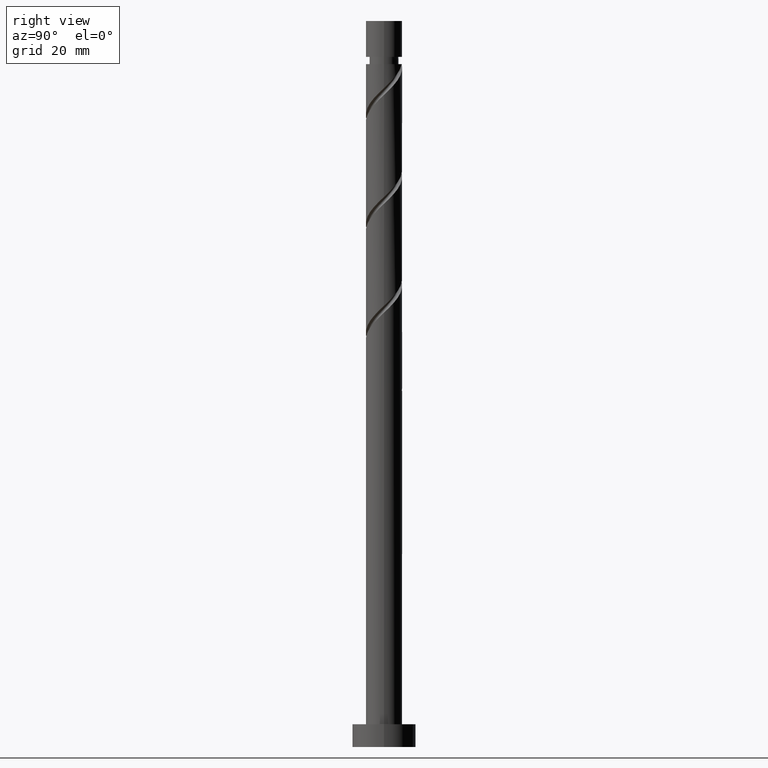
[diagram: clean part render]
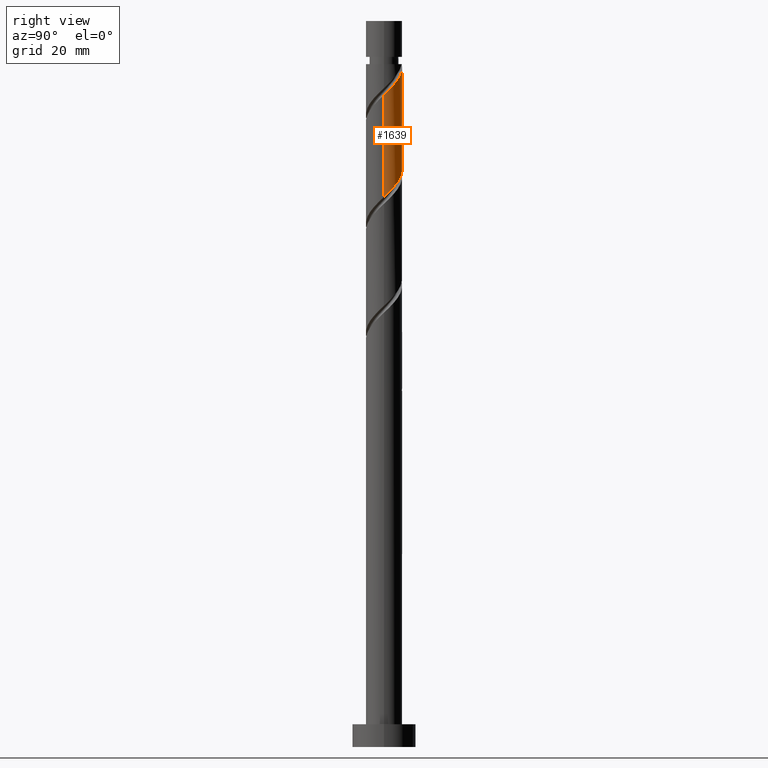
[diagram: same view with one face highlighted and labeled with its STEP entity id]
A machine part, right view. The second image highlights one B-rep face of the part: STEP entity #1639.
In plain terms, the highlighted cylindrical surface (edge-blend (fillet) strip) has radius 4 mm, axis along (-0, -0, -1).
Its self-contained STEP definition (entity closure, byte-faithful):
#1 = CARTESIAN_POINT ( 'NONE',  ( 3.960310248029106805, 0.8041752946599101115, 144.4903638429429122 ) ) ;
#15 = DIRECTION ( 'NONE',  ( -0.000000000000000000, -0.000000000000000000, -1.000000000000000000 ) ) ;
#20 = CARTESIAN_POINT ( 'NONE',  ( 4.000000000000005329, 0.1151021060952808067, 143.8357430158185082 ) ) ;
#23 = CARTESIAN_POINT ( 'NONE',  ( -3.766818871216632836, 1.345762085751508463, 131.9449092974883797 ) ) ;
#37 = CARTESIAN_POINT ( 'NONE',  ( 1.868138386609203838, 3.536956172823910727, 125.3994547520338472 ) ) ;
#98 = EDGE_CURVE ( 'NONE', #899, #764, #1036, .T. ) ;
#147 = EDGE_CURVE ( 'NONE', #526, #899, #344, .T. ) ;
#149 = CARTESIAN_POINT ( 'NONE',  ( 0.2323790372250010838, 4.034446077002895592, 127.0358183883974448 ) ) ;
#174 = CARTESIAN_POINT ( 'NONE',  ( -3.993381233129879693, 0.2300137536889541867, 133.0358183883974448 ) ) ;
#184 = VECTOR ( 'NONE', #846, 1000.000000000000000 ) ;
#277 = CYLINDRICAL_SURFACE ( 'NONE', #1334, 4.000000000000000000 ) ;
#283 = CARTESIAN_POINT ( 'NONE',  ( -3.573327494404164639, 1.887348876843108147, 131.3994547520338472 ) ) ;
#290 = CARTESIAN_POINT ( 'NONE',  ( -3.999999999999993339, 0.000000000000000000, 150.4903638429429122 ) ) ;
#307 = CARTESIAN_POINT ( 'NONE',  ( 3.201206812320808837, 2.466379960577145702, 123.7630911156702069 ) ) ;
#344 = LINE ( 'NONE', #1499, #184 ) ;
#363 = CARTESIAN_POINT ( 'NONE',  ( 3.235091246491828887, 2.352484777181775399, 146.1267274793065383 ) ) ;
#389 = CARTESIAN_POINT ( 'NONE',  ( 1.449682647155074333, 3.728058505782534393, 148.3085456611247537 ) ) ;
#393 = LINE ( 'NONE', #1545, #1434 ) ;
#401 = CARTESIAN_POINT ( 'NONE',  ( -2.896854998579482920, 2.817620677520439987, 130.3085456611247253 ) ) ;
#407 = CIRCLE ( 'NONE', #1281, 3.999999999999993339 ) ;
#411 = CARTESIAN_POINT ( 'NONE',  ( -2.441275768804708868, 3.168623142730448095, 129.7630911156701643 ) ) ;
#436 = CARTESIAN_POINT ( 'NONE',  ( -4.000000000000000000, -1.824732125826569623E-15, 133.2548728743137190 ) ) ;
#522 = CARTESIAN_POINT ( 'NONE',  ( 4.000000000000005329, 2.557616340297881178E-15, 143.7258548115720771 ) ) ;
#526 = VERTEX_POINT ( 'NONE', #290 ) ;
#550 = CARTESIAN_POINT ( 'NONE',  ( 2.376675911072815062, 3.268358422650716744, 124.8540002065793146 ) ) ;
#597 = EDGE_LOOP ( 'NONE', ( #701, #1159, #1463, #1351, #629 ) ) ;
#629 = ORIENTED_EDGE ( 'NONE', *, *, #721, .T. ) ;
#635 = DIRECTION ( 'NONE',  ( -0.000000000000000000, -0.000000000000000000, -1.000000000000000000 ) ) ;
#645 = CARTESIAN_POINT ( 'NONE',  ( 0.3406448590276063282, 3.985468740313755642, 149.3994547520338472 ) ) ;
#662 = CARTESIAN_POINT ( 'NONE',  ( 0.7959899496852975709, 3.919999999999999929, 126.4903638429428980 ) ) ;
#669 = CARTESIAN_POINT ( 'NONE',  ( 1.359600862145592615, 3.805553922997103378, 125.9449092974884223 ) ) ;
#690 = EDGE_CURVE ( 'NONE', #996, #764, #393, .T. ) ;
#694 = CARTESIAN_POINT ( 'NONE',  ( -3.960310248029102365, 0.8041752946599105556, 132.4903638429429122 ) ) ;
#701 = ORIENTED_EDGE ( 'NONE', *, *, #1110, .F. ) ;
#721 = EDGE_CURVE ( 'NONE', #526, #1454, #407, .T. ) ;
#735 = CARTESIAN_POINT ( 'NONE',  ( 4.000000000000001776, 0.4581157095404880808, 121.6922368319878984 ) ) ;
#764 = VERTEX_POINT ( 'NONE', #1418 ) ;
#788 = CARTESIAN_POINT ( 'NONE',  ( 3.993381233129885466, 0.2300137536889530487, 143.9449092974883797 ) ) ;
#797 = CARTESIAN_POINT ( 'NONE',  ( -0.9136687552802111867, 3.936491403624602814, 128.1267274793065667 ) ) ;
#798 = DIRECTION ( 'NONE',  ( -0.000000000000000000, -0.000000000000000000, -1.000000000000000000 ) ) ;
#803 = CARTESIAN_POINT ( 'NONE',  ( 0.000000000000000000, 0.000000000000000000, 160.0000000000000000 ) ) ;
#846 = DIRECTION ( 'NONE',  ( -0.000000000000000000, -0.000000000000000000, -1.000000000000000000 ) ) ;
#879 = CARTESIAN_POINT ( 'NONE',  ( 1.985696539029936369, 3.519625607940460643, 147.7630911156701927 ) ) ;
#887 = CARTESIAN_POINT ( 'NONE',  ( 4.000000000000005329, 2.557616340297881178E-15, 143.7258548115720771 ) ) ;
#899 = VERTEX_POINT ( 'NONE', #1114 ) ;
#938 = CARTESIAN_POINT ( 'NONE',  ( -1.449682647155072557, 3.728058505782528620, 128.6721820247610708 ) ) ;
#996 = VERTEX_POINT ( 'NONE', #887 ) ;
#1013 = CARTESIAN_POINT ( 'NONE',  ( 3.573327494404170412, 1.887348876843108370, 145.5812729338519489 ) ) ;
#1029 = CARTESIAN_POINT ( 'NONE',  ( 0.000000000000000000, 0.000000000000000000, 150.4903638429429122 ) ) ;
#1033 = CARTESIAN_POINT ( 'NONE',  ( -0.2323790372249945890, 4.034446077002900921, 149.9449092974883797 ) ) ;
#1036 =( BOUNDED_CURVE ( )  B_SPLINE_CURVE ( 2, ( #436, #1058, #174, #694, #23, #283, #1559, #401, #411, #1323, #938, #797, #1317, #149, #662, #669, #37, #550, #1573, #307, #1606, #1125, #1135, #735, #1360 ),
 .UNSPECIFIED., .F., .T. ) 
 B_SPLINE_CURVE_WITH_KNOTS ( ( 3, 2, 2, 2, 2, 2, 2, 2, 2, 2, 2, 2, 3 ),
 ( 0.4295252162417512176, 0.4318181818181818232, 0.4431818181818181768, 0.4545454545454545303, 0.4659090909090908839, 0.4772727272727272929, 0.4886363636363636465, 0.5000000000000000000, 0.5113636363636363535, 0.5227272727272727071, 0.5340909090909090606, 0.5454545454545454142, 0.5545252162417513286 ),
 .UNSPECIFIED. ) 
 CURVE ( )  GEOMETRIC_REPRESENTATION_ITEM ( )  RATIONAL_B_SPLINE_CURVE ( ( 0.9061101570135566829, 0.9072237824201389023, 0.9090909090909164991, 0.8998376744372188485, 0.9090909090909164991, 0.8998376744372188485, 0.9090909090909164991, 0.8998376744372188485, 0.9090909090909164991, 0.8998376744372188485, 0.9090909090909164991, 0.8998376744372188485, 0.9090909090909164991, 0.8998376744372188485, 0.9090909090909164991, 0.8998376744372188485, 0.9090909090909164991, 0.8998376744372188485, 0.9090909090909164991, 0.8998376744372188485, 0.9090909090909164991, 0.8998376744372188485, 0.9090909090909164991, 0.9017048011079962233, 0.9061101570135567940 ) ) 
 REPRESENTATION_ITEM ( '' )  );
#1058 = CARTESIAN_POINT ( 'NONE',  ( -4.000000000000000888, 0.1151021060952836655, 133.1449846700673163 ) ) ;
#1077 = FACE_OUTER_BOUND ( 'NONE', #597, .T. ) ;
#1110 = EDGE_CURVE ( 'NONE', #996, #1454, #1437, .T. ) ;
#1114 = CARTESIAN_POINT ( 'NONE',  ( -4.000000000000000000, -1.824732125826569623E-15, 133.2548728743137190 ) ) ;
#1125 = CARTESIAN_POINT ( 'NONE',  ( 3.766394975944543866, 1.464590062224026212, 122.6721820247610992 ) ) ;
#1135 = CARTESIAN_POINT ( 'NONE',  ( 3.896423597087600665, 0.9043689247530143360, 122.1267274793065383 ) ) ;
#1159 = ORIENTED_EDGE ( 'NONE', *, *, #690, .T. ) ;
#1177 = CARTESIAN_POINT ( 'NONE',  ( -0.7959899496852738121, 3.920000000000002593, 150.4903638429428838 ) ) ;
#1281 = AXIS2_PLACEMENT_3D ( 'NONE', #1029, #635, #1293 ) ;
#1293 = DIRECTION ( 'NONE',  ( -1.000000000000000000, 0.000000000000000000, 0.000000000000000000 ) ) ;
#1306 = CARTESIAN_POINT ( 'NONE',  ( 3.766818871216639053, 1.345762085751509574, 145.0358183883974448 ) ) ;
#1317 = CARTESIAN_POINT ( 'NONE',  ( -0.3406448590276049404, 3.985468740313750313, 127.5812729338519915 ) ) ;
#1323 = CARTESIAN_POINT ( 'NONE',  ( -1.985696539029934815, 3.519625607940455758, 129.2176365702156602 ) ) ;
#1325 = DIRECTION ( 'NONE',  ( -1.000000000000000000, 0.000000000000000000, 0.000000000000000000 ) ) ;
#1334 = AXIS2_PLACEMENT_3D ( 'NONE', #803, #798, #1325 ) ;
#1351 = ORIENTED_EDGE ( 'NONE', *, *, #147, .F. ) ;
#1360 = CARTESIAN_POINT ( 'NONE',  ( 4.000000000000000888, -4.606700776676913527E-15, 121.2548728743137190 ) ) ;
#1401 = CARTESIAN_POINT ( 'NONE',  ( 2.441275768804711976, 3.168623142730452091, 147.2176365702156318 ) ) ;
#1418 = CARTESIAN_POINT ( 'NONE',  ( 4.000000000000000888, -4.606700776676913527E-15, 121.2548728743137190 ) ) ;
#1434 = VECTOR ( 'NONE', #15, 1000.000000000000000 ) ;
#1437 =( BOUNDED_CURVE ( )  B_SPLINE_CURVE ( 2, ( #522, #20, #788, #1, #1306, #1013, #363, #1654, #1401, #879, #389, #1513, #645, #1033, #1177 ),
 .UNSPECIFIED., .F., .T. ) 
 B_SPLINE_CURVE_WITH_KNOTS ( ( 3, 2, 2, 2, 2, 2, 2, 3 ),
 ( 0.6795252162417512176, 0.6818181818181818787, 0.6931818181818181213, 0.7045454545454545858, 0.7159090909090908283, 0.7272727272727271819, 0.7386363636363635354, 0.7499999999999998890 ),
 .UNSPECIFIED. ) 
 CURVE ( )  GEOMETRIC_REPRESENTATION_ITEM ( )  RATIONAL_B_SPLINE_CURVE ( ( 0.9061101570135621230, 0.9072237824201443424, 0.9090909090909219392, 0.8998376744372241776, 0.9090909090909219392, 0.8998376744372241776, 0.9090909090909219392, 0.8998376744372241776, 0.9090909090909219392, 0.8998376744372241776, 0.9090909090909219392, 0.8998376744372241776, 0.9090909090909219392, 0.8998376744372242886, 0.9090909090909218282 ) ) 
 REPRESENTATION_ITEM ( '' )  );
#1454 = VERTEX_POINT ( 'NONE', #1636 ) ;
#1463 = ORIENTED_EDGE ( 'NONE', *, *, #98, .F. ) ;
#1499 = CARTESIAN_POINT ( 'NONE',  ( -4.000000000000000000, 0.000000000000000000, 160.0000000000000000 ) ) ;
#1513 = CARTESIAN_POINT ( 'NONE',  ( 0.9136687552802131851, 3.936491403624606811, 148.8540002065792862 ) ) ;
#1545 = CARTESIAN_POINT ( 'NONE',  ( 4.000000000000000000, 4.898587196589412829E-16, 160.0000000000000000 ) ) ;
#1559 = CARTESIAN_POINT ( 'NONE',  ( -3.235091246491823558, 2.352484777181774511, 130.8540002065792578 ) ) ;
#1573 = CARTESIAN_POINT ( 'NONE',  ( 2.788941361696811949, 2.867369191613931445, 124.3085456611247110 ) ) ;
#1606 = CARTESIAN_POINT ( 'NONE',  ( 3.483800894132676351, 1.965485011400587290, 123.2176365702156602 ) ) ;
#1636 = CARTESIAN_POINT ( 'NONE',  ( -0.7959899496852738121, 3.920000000000002593, 150.4903638429428838 ) ) ;
#1639 = ADVANCED_FACE ( 'NONE', ( #1077 ), #277, .T. ) ;
#1654 = CARTESIAN_POINT ( 'NONE',  ( 2.896854998579489138, 2.817620677520440875, 146.6721820247610992 ) ) ;